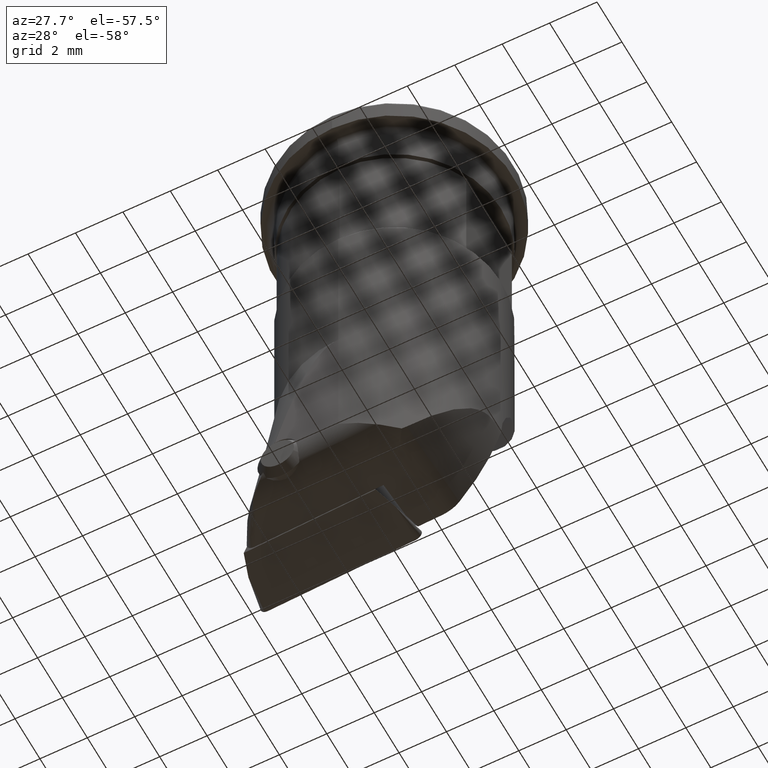
[diagram: clean part render]
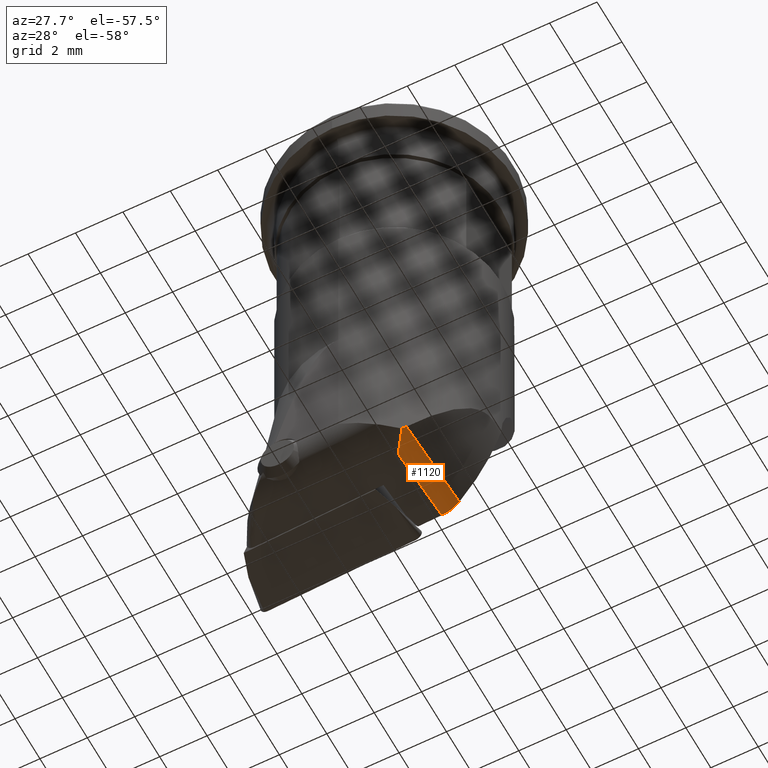
[diagram: same view with one face highlighted and labeled with its STEP entity id]
A machine part, auxiliary view. The second image highlights one B-rep face of the part: STEP entity #1120.
In plain terms, the highlighted face is a freeform B-spline surface patch.
Its self-contained STEP definition (entity closure, byte-faithful):
#718=VERTEX_POINT('NONE',#1975);
#742=EDGE_CURVE('NONE',#1564,#718,#2004,.T.);
#810=VERTEX_POINT('NONE',#2083);
#826=EDGE_CURVE('NONE',#1550,#810,#2099,.F.);
#1120=ADVANCED_FACE('NONE',(#2419),#2420,.T.);
#1240=EDGE_CURVE('NONE',#718,#1692,#2555,.T.);
#1550=VERTEX_POINT('NONE',#2895);
#1564=VERTEX_POINT('NONE',#2911);
#1616=EDGE_CURVE('NONE',#1564,#810,#2967,.T.);
#1692=VERTEX_POINT('NONE',#3053);
#1722=EDGE_CURVE('NONE',#1692,#1550,#3088,.T.);
#1975=CARTESIAN_POINT('',(2.48485124026937,-3.75173484054134,-21.8073467416424));
#2004=B_SPLINE_CURVE_WITH_KNOTS('',3,(#3453,#3454,#3455,#3456),.UNSPECIFIED.,.F.,.F.,(4,4),(0.000760702387926026,0.00099637685122341),.UNSPECIFIED.);
#2083=CARTESIAN_POINT('',(1.77605299785762,-3.07868135660901,-22.2532959328574));
#2099=B_SPLINE_CURVE_WITH_KNOTS('',3,(#4018,#4019,#4020,#4021),.UNSPECIFIED.,.F.,.F.,(4,4),(0.01488836019778,0.0179789338001943),.UNSPECIFIED.);
#2419=FACE_OUTER_BOUND('',#4875,.T.);
#2420=(B_SPLINE_SURFACE(3,2,((#4877,#4878,#4879),(#4880,#4881,#4882),(#4883,#4884,#4885),(#4886,#4887,#4888)),.UNSPECIFIED.,.F.,.F.,.F.)B_SPLINE_SURFACE_WITH_KNOTS((4,4),(3,3),(0.0141494688908264,0.0180134495083062),(0.0,1.0),.UNSPECIFIED.)RATIONAL_B_SPLINE_SURFACE(((1.0,0.901863856592705,1.0),(1.0,0.90397130429551,1.0),(1.0,0.905943381872537,1.0),(1.0,0.907803319218179,1.0)))BOUNDED_SURFACE()REPRESENTATION_ITEM('')GEOMETRIC_REPRESENTATION_ITEM()SURFACE());
#2555=B_SPLINE_CURVE_WITH_KNOTS('',3,(#5128,#5129,#5130,#5131,#5132,#5133,#5134),.UNSPECIFIED.,.F.,.F.,(4,3,4),(0.000379086505706414,0.00195623923992363,0.00414537279991295),.UNSPECIFIED.);
#2895=CARTESIAN_POINT('',(2.00185510418655,0.0,-22.4034921538128));
#2911=CARTESIAN_POINT('',(2.33292725290325,-3.84804501437565,-21.9633324489717));
#2967=B_SPLINE_CURVE_WITH_KNOTS('',3,(#6049,#6050,#6051,#6052,#6053,#6054),.UNSPECIFIED.,.F.,.F.,(4,2,4),(0.0,0.000497747311411984,0.000995494622823968),.UNSPECIFIED.);
#3053=CARTESIAN_POINT('',(2.74456266207882,0.0,-22.0121484607231));
#3088=B_SPLINE_CURVE_WITH_KNOTS('',3,(#6294,#6295,#6296,#6297,#6298,#6299),.UNSPECIFIED.,.F.,.F.,(4,2,4),(0.0,0.000430527770545451,0.000861055541090903),.UNSPECIFIED.);
#3453=CARTESIAN_POINT('',(2.33292725290325,-3.84804501437565,-21.9633324489717));
#3454=CARTESIAN_POINT('',(2.38811332922806,-3.81458773906887,-21.9179215792154));
#3455=CARTESIAN_POINT('',(2.43950262973367,-3.78177015911355,-21.8656949545834));
#3456=CARTESIAN_POINT('',(2.48485124026937,-3.75173484054134,-21.8073467416424));
#4018=CARTESIAN_POINT('',(1.77605299785738,-3.07868135661225,-22.2532959328572));
#4019=CARTESIAN_POINT('',(1.85230965352759,-2.05252287846934,-22.3033063181505));
#4020=CARTESIAN_POINT('',(1.92754895783432,-1.02629105065261,-22.3533734312715));
#4021=CARTESIAN_POINT('',(2.00185510418655,-3.11313474998798E-014,-22.4034921538128));
#4875=EDGE_LOOP('',(#7175,#7176,#7177,#7178,#7179));
#4877=CARTESIAN_POINT('',(1.72118329620104,-3.81466747464165,-22.217436428621));
#4878=CARTESIAN_POINT('',(2.19823712772473,-3.84905277213882,-22.1908362663414));
#4879=CARTESIAN_POINT('',(2.4778687907418,-3.85102232713983,-21.801898572664));
#4880=CARTESIAN_POINT('',(1.81713716246164,-2.53176069433482,-22.2799274881713));
#4881=CARTESIAN_POINT('',(2.28803872198795,-2.56830564203081,-22.2535334557519));
#4882=CARTESIAN_POINT('',(2.56817679133337,-2.56741977216973,-21.8723433024229));
#4883=CARTESIAN_POINT('',(1.91146932493428,-1.24873398052867,-22.3425091327894));
#4884=CARTESIAN_POINT('',(2.37678907253077,-1.28414995834064,-22.3164645574885));
#4885=CARTESIAN_POINT('',(2.65702241933018,-1.2837386429257,-21.9424045165943));
#4886=CARTESIAN_POINT('',(2.00434432140137,0.034385058931776,-22.4051713596569));
#4887=CARTESIAN_POINT('',(2.46450929806642,0.0023274838854234,-22.3795713113933));
#4888=CARTESIAN_POINT('',(2.74456266303852,9.94001720863724E-009,-22.0121484614014));
#5128=CARTESIAN_POINT('',(2.48485124026937,-3.75173484054134,-21.8073467416424));
#5129=CARTESIAN_POINT('',(2.5216610749067,-3.22809504899357,-21.8360761732403));
#5130=CARTESIAN_POINT('',(2.55822845662314,-2.7044346877228,-21.8647423292502));
#5131=CARTESIAN_POINT('',(2.59456461025552,-2.18075514810536,-21.8933500062519));
#5132=CARTESIAN_POINT('',(2.6450002396871,-1.45387284052102,-21.9330582871765));
#5133=CARTESIAN_POINT('',(2.69499050351471,-0.726953351721302,-21.9726539688825));
#5134=CARTESIAN_POINT('',(2.74456266207882,0.0,-22.0121484607231));
#6049=CARTESIAN_POINT('',(2.33292725290325,-3.84804501437565,-21.9633324489717));
#6050=CARTESIAN_POINT('',(2.25173859278159,-3.72844624860048,-22.0496376983596));
#6051=CARTESIAN_POINT('',(2.16292847741897,-3.60420510917965,-22.1147243980814));
#6052=CARTESIAN_POINT('',(1.97525205598739,-3.34663300915839,-22.2106678691583));
#6053=CARTESIAN_POINT('',(1.87485143606916,-3.21142240111977,-22.2411797273046));
#6054=CARTESIAN_POINT('',(1.77605299785762,-3.07868135660901,-22.2532959328574));
#6294=CARTESIAN_POINT('',(2.74456266207882,0.0,-22.0121484607231));
#6295=CARTESIAN_POINT('',(2.65626206668686,0.0,-22.1278911190323));
#6296=CARTESIAN_POINT('',(2.54392241093743,0.0,-22.2223791966143));
#6297=CARTESIAN_POINT('',(2.28933334154382,0.0,-22.3565462412209));
#6298=CARTESIAN_POINT('',(2.14723024391655,0.0,-22.3959372831722));
#6299=CARTESIAN_POINT('',(2.00185510418655,0.0,-22.4034921538128));
#7175=ORIENTED_EDGE('',*,*,#742,.F.);
#7176=ORIENTED_EDGE('',*,*,#1616,.T.);
#7177=ORIENTED_EDGE('',*,*,#826,.F.);
#7178=ORIENTED_EDGE('',*,*,#1722,.F.);
#7179=ORIENTED_EDGE('',*,*,#1240,.F.);